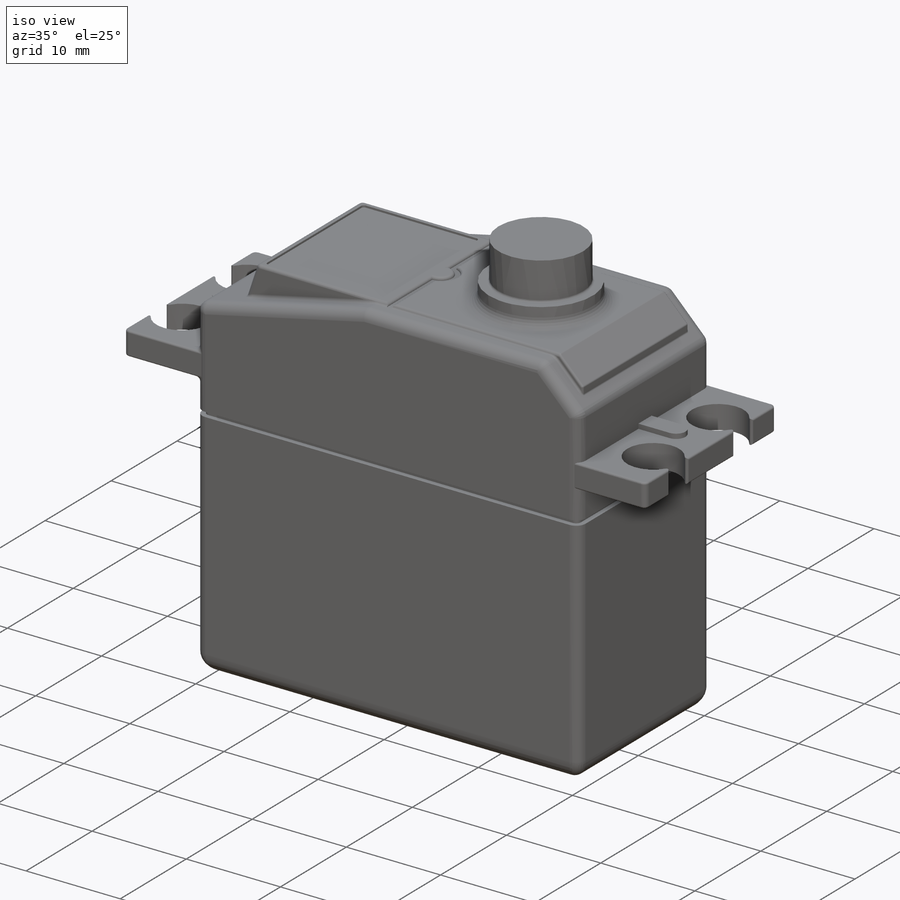
[diagram: iso view]
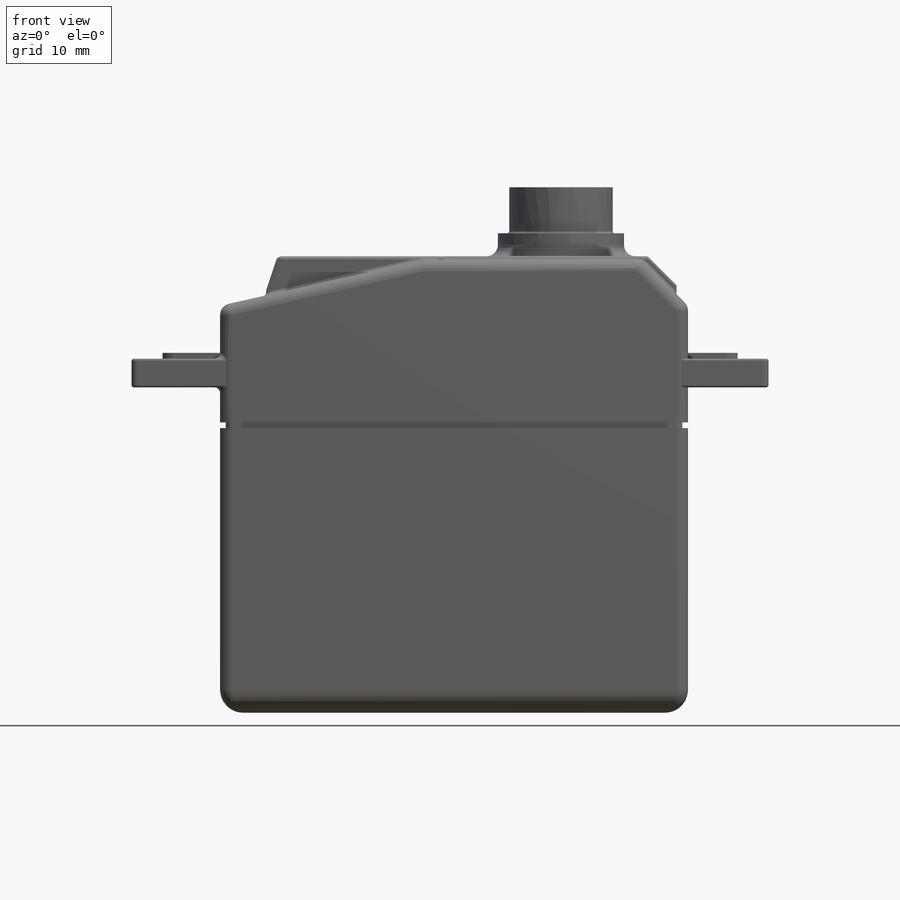
[diagram: front view]
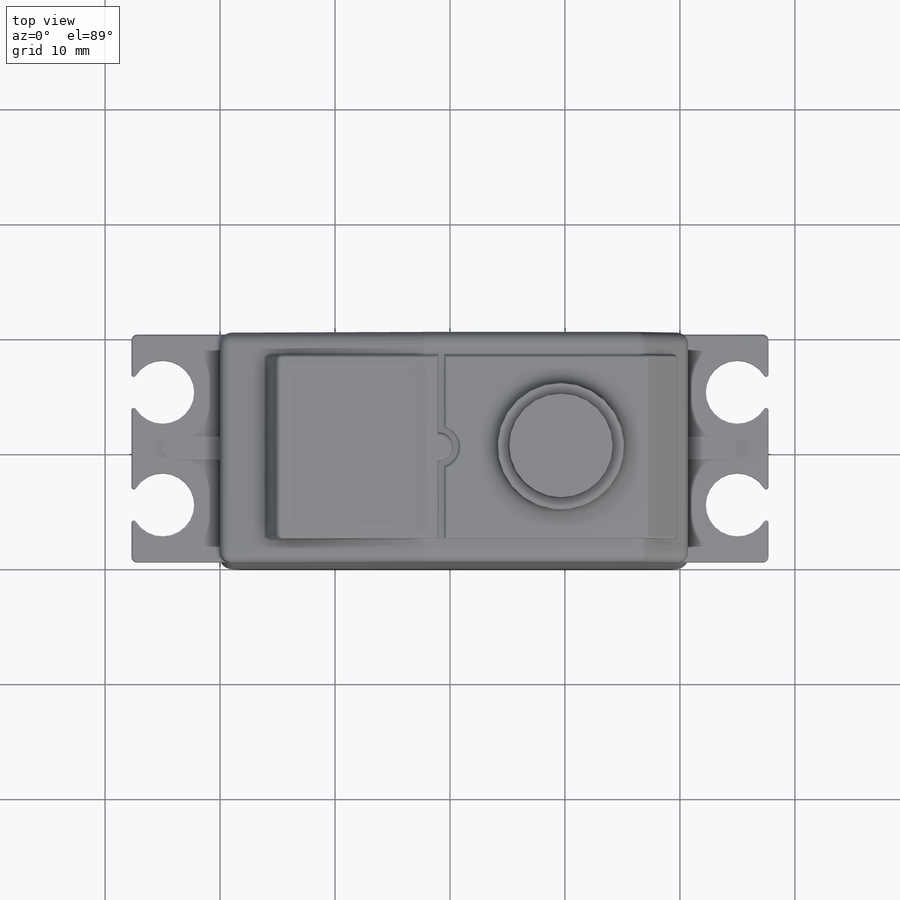
[diagram: top view]
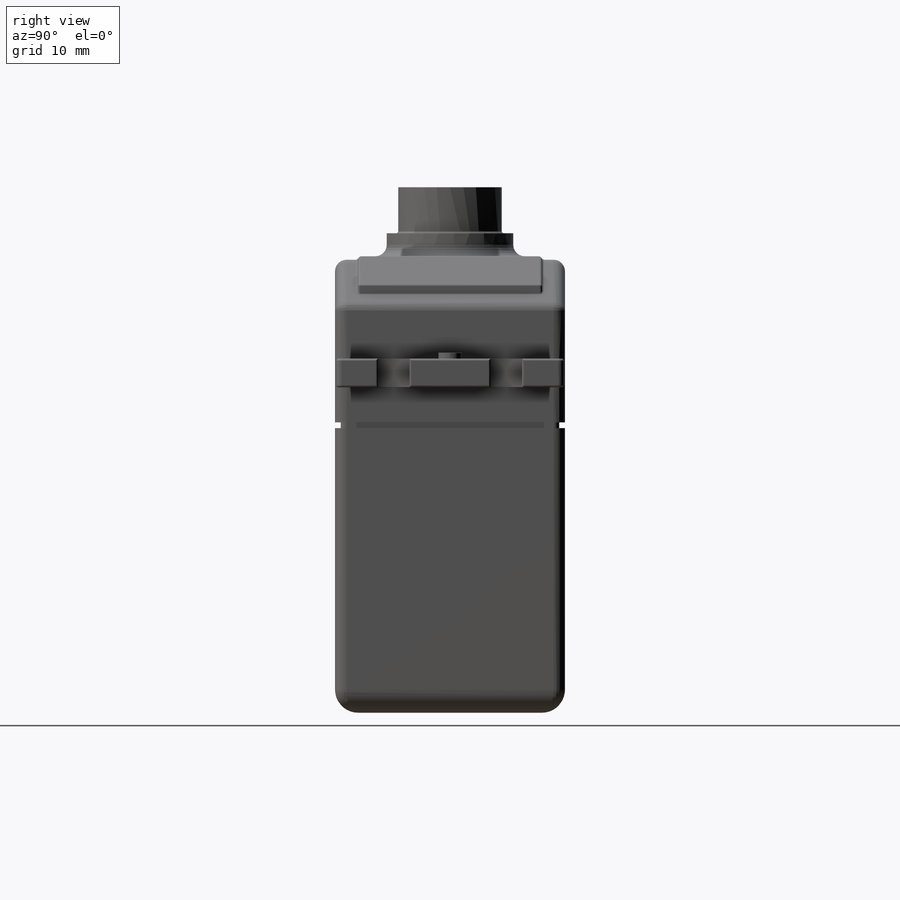
[diagram: right view]
SOLIDWORKS PART (.sldprt)
format: sldprt  version: not decoded by parser v0  size: 897,536 bytes
history: native  units: mm
features: sketch x14, fillet x13, extrude x8, cut_extrude x6, chamfer x4, plane x3, material x1 (+12 scaffold rows collapsed)
feature tree (61):
  scaffold x12  (default folders/planes/origin — collapsed)
  material  "PVC Rigid"
  sketch  "Sketch1"  dims[D1=40.7mm D2=20.0mm]
  extrude  "Boss-Extrude1"  Depth=39.4mm
  fillet  "Fillet1"  Radius=2mm
  chamfer  "Chamfer1"  Distance=4mm
  chamfer  "Chamfer2"  Distance=4mm Angle=45deg
  fillet  "Fillet2"  Radius=1mm
  sketch  "Sketch2"  dims[D9=2.5mm D13=0.3mm D1=4.0mm D2=1.0mm D3=1.0mm D4=1.0mm D5=1.0mm D6=1.5mm D7=0.5mm D8=0.5mm D11=1.0mm D12=0.5mm D10=0.5mm]
  extrude  "Boss-Extrude3"  Depth=0.3mm
  chamfer  "Chamfer3"  Distance=3mm
  chamfer  "Chamfer4"  Distance=2.5mm Angle=45deg
  fillet  "Fillet8"  Radius=0.3mm
  sketch  "Sketch3"  dims[D1=0.3mm]
  cut_extrude  "Cut-Extrude1"  Depth=0.2mm
  plane  "snee plane"  Offset=25mm
  sketch  "Sketch5"  dims[D2=0.5mm D1=0.5mm]
  cut_extrude  "Cut-Extrude3"  Depth=0.5mm
  plane  "schroefplane"  Offset=28.3mm
  sketch  "Sketch7"  dims[c1.D6=5.5mm c1.D1=0.1mm c1.D2=0.1mm c1.D3=7.25mm c1.D4=2.49mm c1.D5=5.0mm c2.D1=0.1mm c2.D2=0.1mm c2.D3=55.4mm c2.D4=50.0mm c2.D5=9.8mm]
  extrude  "Boss-Extrude7"  Depth=2.5mm
  fillet  "Fillet10"  Radius=0.2mm
  fillet  "Fillet11"  Radius=0.5mm
  fillet  "Fillet12"  Radius=0.5mm
  fillet  "Fillet13"  Radius=0.3mm
  fillet  "Fillet14"  Radius=0.3mm
  fillet  "Fillet15"  Radius=0.2mm
  fillet  "Fillet16"  Radius=0.5mm
  sketch  "Sketch9"  dims[D3=11.0mm D1=34.65mm D2=15.35mm]
  extrude  "Boss-Extrude8"  Depth=2mm
  fillet  "Fillet17"  Radius=1mm
  plane  "gear plane"  Offset=6mm
  sketch  "Sketch11"  dims[D1=1.0mm]
  extrude  "Boss-Extrude9"  [1 undecoded]
  fillet  "Fillet18"  Radius=0.2mm
  sketch  "Sketch12"  dims[D1=20.2mm]
  extrude  "Boss-Extrude10"  Depth=2mm
  fillet  "Fillet19"  Radius=0.2mm
  sketch  "Sketch13"  dims[D1=1.0mm D3=7.5mm D2=2.0 D4=4.0]
  cut_extrude  "Cut-Extrude4"  [1 undecoded]
  sketch  "Sketch15"  dims[D1=10.0mm]
  cut_extrude  "Cut-Extrude5"  Depth=0.2mm
  sketch  "Sketch16"  dims[D1=8.0mm]
  extrude  "Boss-Extrude11"  Depth=0.4mm
  sketch  "Sketch17"  dims[D1=5.0mm]
  cut_extrude  "Cut-Extrude6"  Depth=10mm
  sketch  "Sketch28"
  cut_extrude  "Cut-Extrude7"  Depth=2mm
  sketch  "Sketch29"  dims[D2=0.98mm D1=2.0mm]
  extrude  "Boss-Extrude12"  Depth=3mm
decode coverage: 42 of 45 modeling features carry decoded parameters
note: 2 parameter values undecoded
note: suppression state not decoded; provenance and decode notes live in map.json
